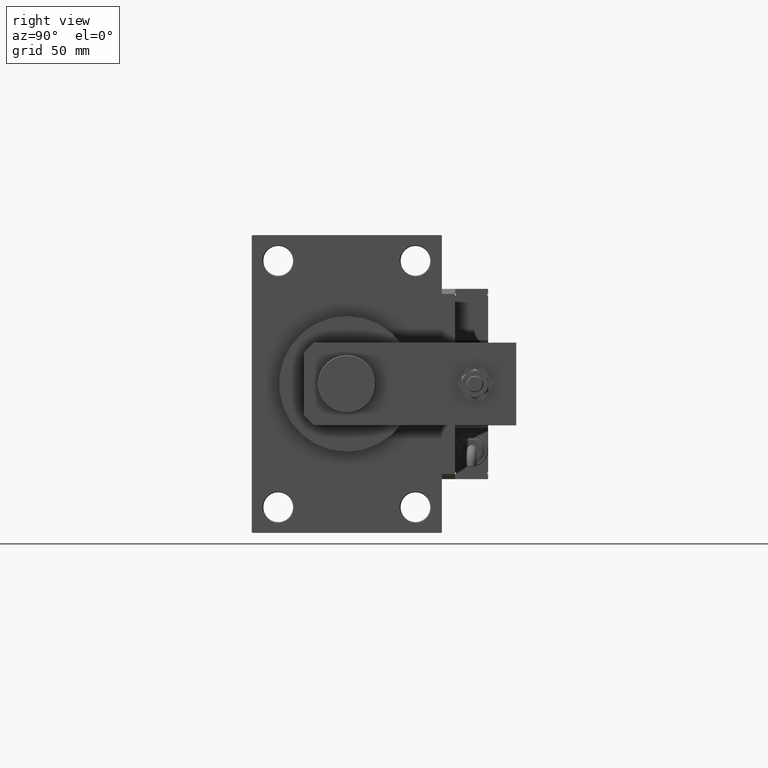
[diagram: clean part render]
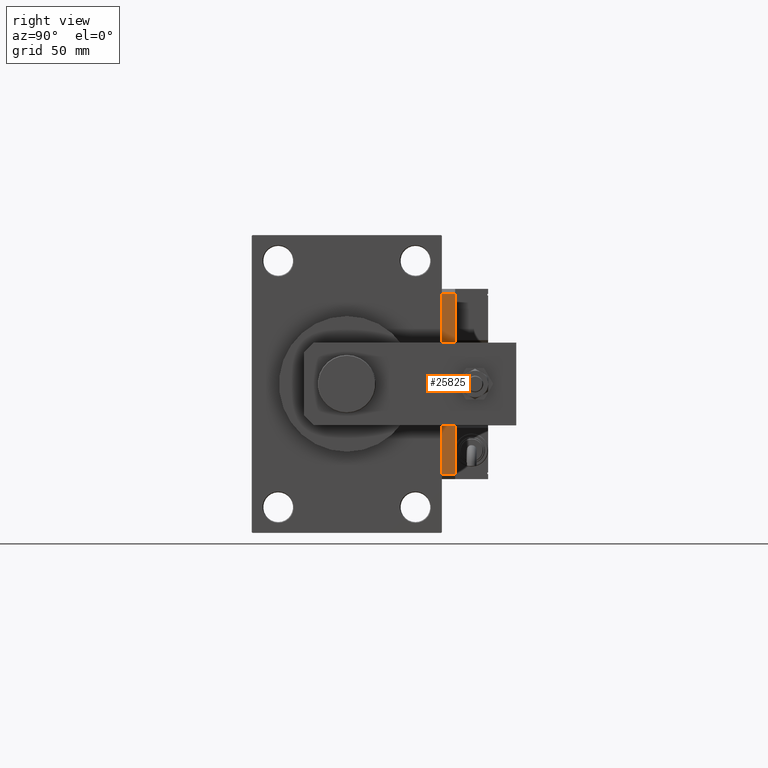
[diagram: same view with one face highlighted and labeled with its STEP entity id]
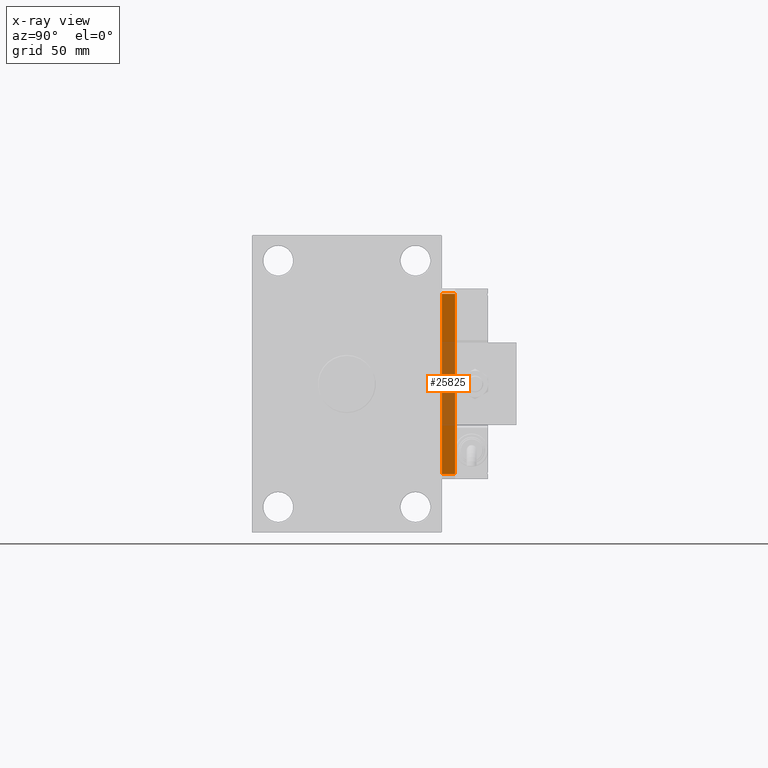
[diagram: x-ray of the same camera — body ghosted, the highlighted face saturated]
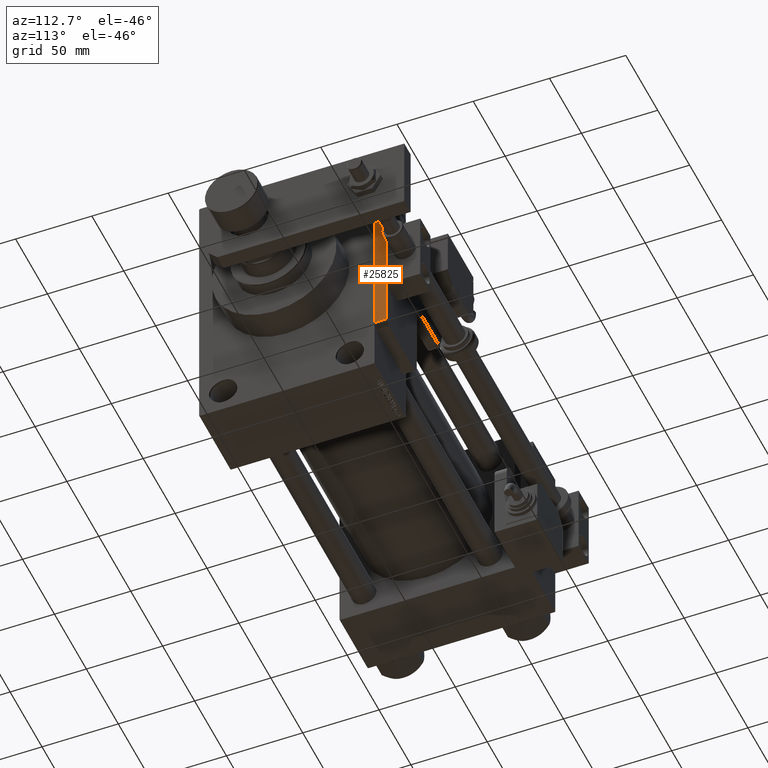
[diagram: same view with one face highlighted and labeled with its STEP entity id]
A machine part, right view. The second image highlights one B-rep face of the part: STEP entity #25825.
The next image is the same camera in x-ray: the body ghosted, the highlighted face saturated — about 46% of this face is hidden behind the body in this view.
A second angle (auxiliary view) of the same face is appended — the face is thin or edge-on in the first view.
In plain terms, the highlighted planar face has unit normal (-1, -0, 0).
Its self-contained STEP definition (entity closure, byte-faithful):
#3294 = CARTESIAN_POINT ( 'NONE',  ( 2.999999999999975131, 0.000000000000000000, 8.000000000000000000 ) ) ;
#3600 = CARTESIAN_POINT ( 'NONE',  ( 2.999999999999975131, 0.000000000000000000, 0.000000000000000000 ) ) ;
#3796 = EDGE_LOOP ( 'NONE', ( #24739, #8020, #24025, #46723 ) ) ;
#4687 = EDGE_CURVE ( 'NONE', #26561, #31737, #15522, .T. ) ;
#5216 = VERTEX_POINT ( 'NONE', #27557 ) ;
#6851 = CARTESIAN_POINT ( 'NONE',  ( 0.000000000000000000, 0.000000000000000000, 0.000000000000000000 ) ) ;
#7018 = DIRECTION ( 'NONE',  ( 0.000000000000000000, 0.000000000000000000, 1.000000000000000000 ) ) ;
#7840 = CARTESIAN_POINT ( 'NONE',  ( 0.000000000000000000, 0.000000000000000000, 8.000000000000000000 ) ) ;
#8020 = ORIENTED_EDGE ( 'NONE', *, *, #48184, .T. ) ;
#11198 = VECTOR ( 'NONE', #40594, 1000.000000000000000 ) ;
#11393 = CARTESIAN_POINT ( 'NONE',  ( 111.9999999999999858, 0.000000000000000000, 8.000000000000000000 ) ) ;
#11414 = DIRECTION ( 'NONE',  ( 0.000000000000000000, -0.000000000000000000, 1.000000000000000000 ) ) ;
#15522 = LINE ( 'NONE', #23662, #43291 ) ;
#18715 = AXIS2_PLACEMENT_3D ( 'NONE', #7840, #23904, #11414 ) ;
#19806 = LINE ( 'NONE', #11393, #27138 ) ;
#19826 = CARTESIAN_POINT ( 'NONE',  ( 111.9999999999999858, 0.000000000000000000, 8.000000000000000000 ) ) ;
#23662 = CARTESIAN_POINT ( 'NONE',  ( 2.999999999999975131, 0.000000000000000000, 8.000000000000000000 ) ) ;
#23721 = LINE ( 'NONE', #6851, #11198 ) ;
#23904 = DIRECTION ( 'NONE',  ( 0.000000000000000000, 1.000000000000000000, 0.000000000000000000 ) ) ;
#24025 = ORIENTED_EDGE ( 'NONE', *, *, #38890, .F. ) ;
#24739 = ORIENTED_EDGE ( 'NONE', *, *, #36984, .T. ) ;
#25825 = ADVANCED_FACE ( 'NONE', ( #39970 ), #32872, .F. ) ;
#26561 = VERTEX_POINT ( 'NONE', #3294 ) ;
#27138 = VECTOR ( 'NONE', #7018, 1000.000000000000000 ) ;
#27557 = CARTESIAN_POINT ( 'NONE',  ( 111.9999999999999858, 0.000000000000000000, 0.000000000000000000 ) ) ;
#30383 = VECTOR ( 'NONE', #37131, 1000.000000000000000 ) ;
#31737 = VERTEX_POINT ( 'NONE', #3600 ) ;
#32233 = LINE ( 'NONE', #53758, #30383 ) ;
#32872 = PLANE ( 'NONE',  #18715 ) ;
#36984 = EDGE_CURVE ( 'NONE', #31737, #5216, #23721, .T. ) ;
#37131 = DIRECTION ( 'NONE',  ( 1.000000000000000000, 0.000000000000000000, 0.000000000000000000 ) ) ;
#38890 = EDGE_CURVE ( 'NONE', #26561, #44922, #32233, .T. ) ;
#39970 = FACE_OUTER_BOUND ( 'NONE', #3796, .T. ) ;
#40268 = DIRECTION ( 'NONE',  ( 0.000000000000000000, 0.000000000000000000, -1.000000000000000000 ) ) ;
#40594 = DIRECTION ( 'NONE',  ( 1.000000000000000000, 0.000000000000000000, 0.000000000000000000 ) ) ;
#43291 = VECTOR ( 'NONE', #40268, 1000.000000000000000 ) ;
#44922 = VERTEX_POINT ( 'NONE', #19826 ) ;
#46723 = ORIENTED_EDGE ( 'NONE', *, *, #4687, .T. ) ;
#48184 = EDGE_CURVE ( 'NONE', #5216, #44922, #19806, .T. ) ;
#53758 = CARTESIAN_POINT ( 'NONE',  ( 0.000000000000000000, 0.000000000000000000, 8.000000000000000000 ) ) ;